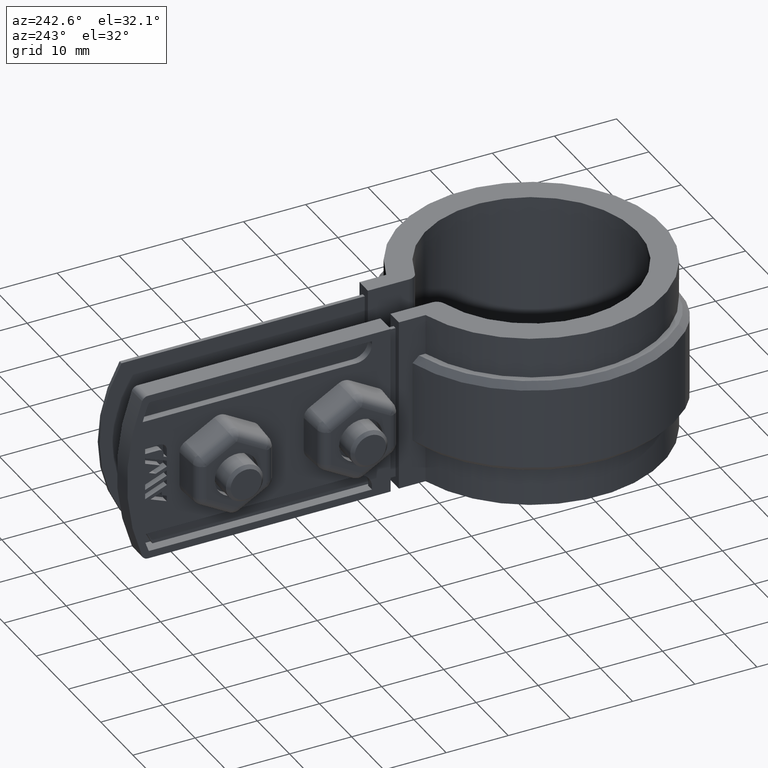
[diagram: clean part render]
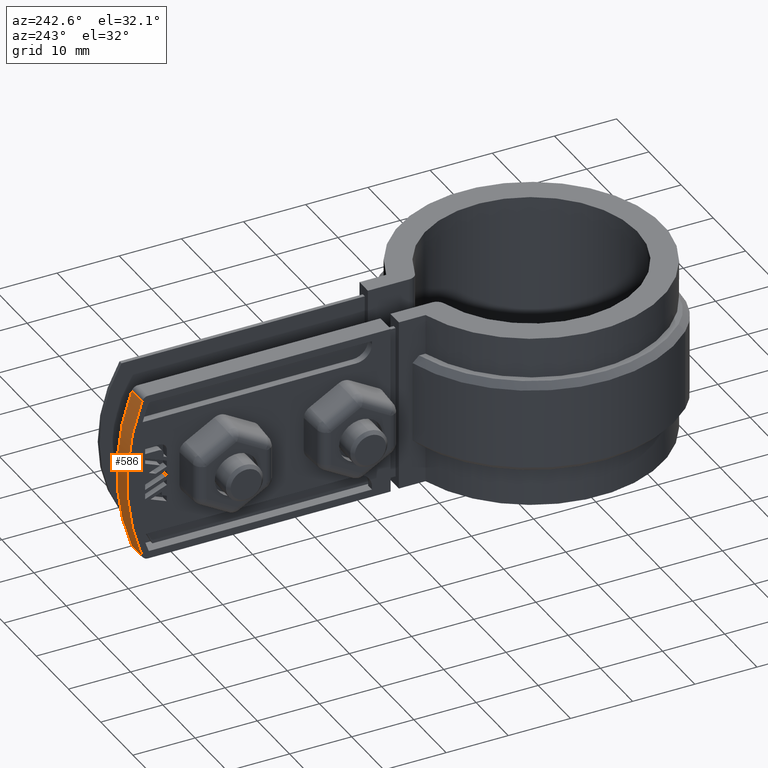
[diagram: same view with one face highlighted and labeled with its STEP entity id]
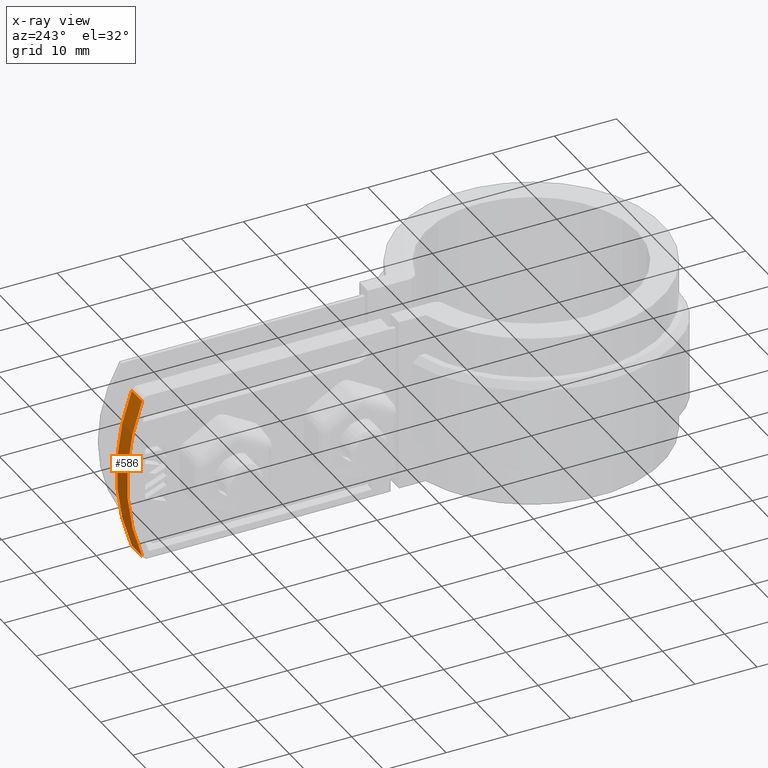
[diagram: x-ray of the same camera — body ghosted, the highlighted face saturated]
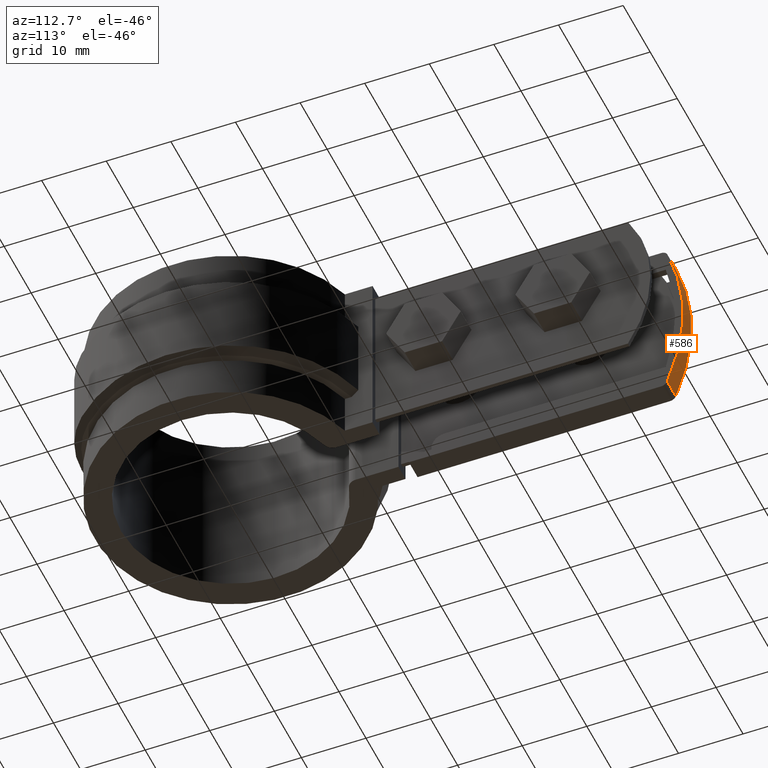
[diagram: same view with one face highlighted and labeled with its STEP entity id]
A machine part, auxiliary view. The second image highlights one B-rep face of the part: STEP entity #586.
The next image is the same camera in x-ray: the body ghosted, the highlighted face saturated — about 0% of this face is hidden behind the body in this view.
A second angle (auxiliary view) of the same face is appended — the face is thin or edge-on in the first view.
In plain terms, the highlighted cylindrical surface (partial cylindrical patch) has radius 36.4 mm, axis along (1, 0, -0).
Its self-contained STEP definition (entity closure, byte-faithful):
#586 = ADVANCED_FACE( '', ( #1190 ), #1191, .T. );
#1190 = FACE_OUTER_BOUND( '', #2446, .T. );
#1191 = CYLINDRICAL_SURFACE( '', #2447, 36.4000000000000 );
#2446 = EDGE_LOOP( '', ( #5726, #5727, #5728, #5729 ) );
#2447 = AXIS2_PLACEMENT_3D( '', #5730, #5731, #5732 );
#5726 = ORIENTED_EDGE( '', *, *, #7255, .T. );
#5727 = ORIENTED_EDGE( '', *, *, #7334, .T. );
#5728 = ORIENTED_EDGE( '', *, *, #6948, .F. );
#5729 = ORIENTED_EDGE( '', *, *, #7335, .T. );
#5730 = CARTESIAN_POINT( '', ( -3.50000000000002, 32.1043584449257, -12.4999999999987 ) );
#5731 = DIRECTION( '', ( 1.00000000000000, 1.51901127710120E-016, -6.32865840457897E-019 ) );
#5732 = DIRECTION( '', ( -1.40493334921679E-016, 0.926467966726517, 0.376373626373626 ) );
#6948 = EDGE_CURVE( '', #8112, #8113, #8114, .T. );
#7255 = EDGE_CURVE( '', #8660, #8658, #8661, .T. );
#7334 = EDGE_CURVE( '', #8658, #8113, #8767, .T. );
#7335 = EDGE_CURVE( '', #8112, #8660, #8768, .T. );
#8112 = VERTEX_POINT( '', #11306 );
#8113 = VERTEX_POINT( '', #11307 );
#8114 = CIRCLE( '', #11308, 36.4000000000000 );
#8658 = VERTEX_POINT( '', #12098 );
#8660 = VERTEX_POINT( '', #12100 );
#8661 = CIRCLE( '', #12101, 36.4000000000000 );
#8767 = LINE( '', #12271, #12272 );
#8768 = LINE( '', #12273, #12274 );
#11306 = CARTESIAN_POINT( '', ( -6.70000000000002, 66.0812456477262, 0.558757062148177 ) );
#11307 = CARTESIAN_POINT( '', ( -6.70000000000002, 66.0812456477262, -25.5587570621456 ) );
#11308 = AXIS2_PLACEMENT_3D( '', #13156, #13157, #13158 );
#12098 = CARTESIAN_POINT( '', ( -3.50000000000002, 66.0812456477262, -25.5587570621456 ) );
#12100 = CARTESIAN_POINT( '', ( -3.50000000000002, 66.0812456477262, 0.558757062148177 ) );
#12101 = AXIS2_PLACEMENT_3D( '', #13585, #13586, #13587 );
#12271 = CARTESIAN_POINT( '', ( -3.50000000000003, 66.0812456477262, -25.5587570621456 ) );
#12272 = VECTOR( '', #13694, 1000.00000000000 );
#12273 = CARTESIAN_POINT( '', ( -3.50000000000003, 66.0812456477262, 0.558757062148180 ) );
#12274 = VECTOR( '', #13695, 1000.00000000000 );
#13156 = CARTESIAN_POINT( '', ( -6.70000000000002, 32.1043584449257, -12.4999999999987 ) );
#13157 = DIRECTION( '', ( -1.00000000000000, 8.63850640449354E-017, 6.32865840457794E-019 ) );
#13158 = DIRECTION( '', ( 6.32865840457775E-019, -2.22044604925031E-016, 1.00000000000000 ) );
#13585 = CARTESIAN_POINT( '', ( -3.50000000000002, 32.1043584449257, -12.4999999999987 ) );
#13586 = DIRECTION( '', ( -1.00000000000000, 8.63850640449354E-017, 6.32865840457794E-019 ) );
#13587 = DIRECTION( '', ( 6.32865840457775E-019, -2.22044604925031E-016, 1.00000000000000 ) );
#13694 = DIRECTION( '', ( -1.00000000000000, -1.51901127710121E-016, 6.32865840457733E-019 ) );
#13695 = DIRECTION( '', ( 1.00000000000000, 1.51901127710121E-016, -6.32865840457733E-019 ) );